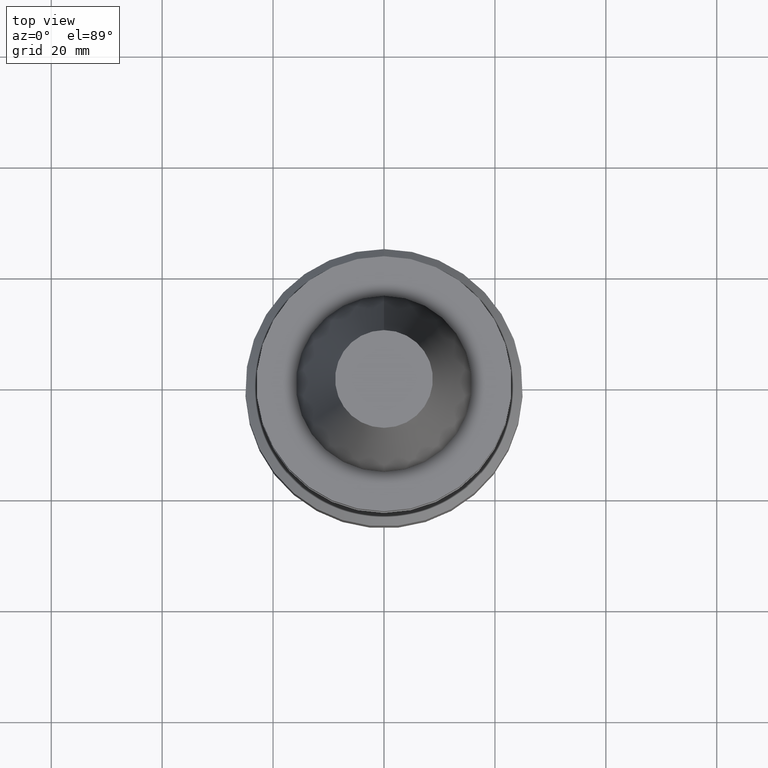
[diagram: clean part render]
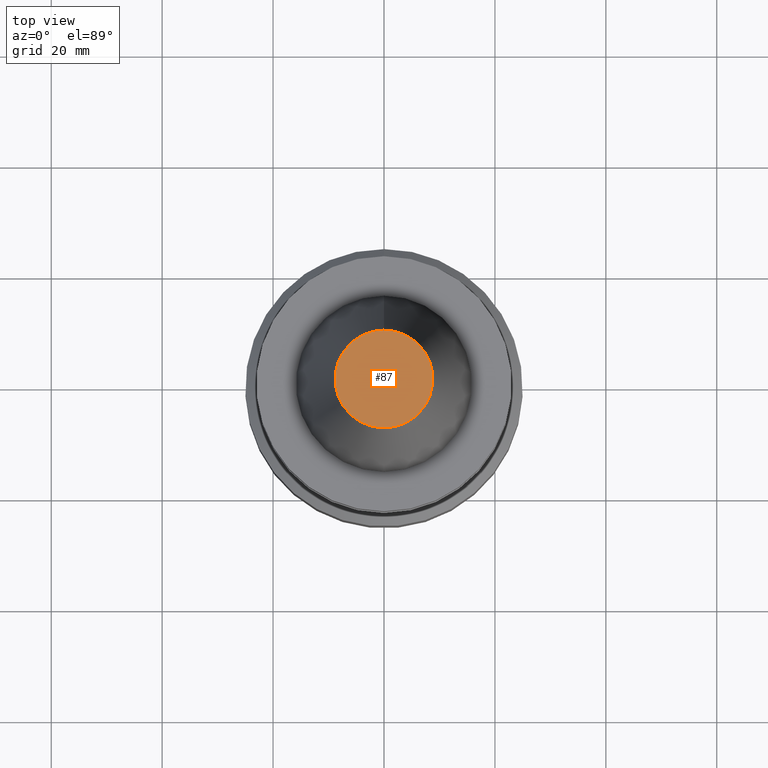
[diagram: same view with one face highlighted and labeled with its STEP entity id]
A machine part, top view. The second image highlights one B-rep face of the part: STEP entity #87.
In plain terms, the highlighted planar face has unit normal (-0, -0, 1).
Its self-contained STEP definition (entity closure, byte-faithful):
#87=ADVANCED_FACE('',(#125),#126,.T.);
#125=FACE_OUTER_BOUND('',#165,.T.);
#126=PLANE('',#166);
#165=EDGE_LOOP('',(#229));
#166=AXIS2_PLACEMENT_3D('',#230,#231,#232);
#229=ORIENTED_EDGE('',*,*,#250,.F.);
#230=CARTESIAN_POINT('',(-2.96364525393659E-015,4.40825,48.4));
#231=DIRECTION('',(-6.12323399573677E-017,-1.22464679914735E-016,1.0));
#232=DIRECTION('',(1.23259516440783E-032,-1.0,-1.22464679914735E-016));
#250=EDGE_CURVE('',#275,#275,#276,.T.);
#275=VERTEX_POINT('',#301);
#276=CIRCLE('',#302,8.81650000000001);
#301=CARTESIAN_POINT('',(-2.96364525393659E-015,8.8165,48.4));
#302=AXIS2_PLACEMENT_3D('',#339,#340,#341);
#339=CARTESIAN_POINT('',(-2.96364525393659E-015,-5.92729050787319E-015,48.4));
#340=DIRECTION('',(6.12323399573677E-017,1.22464679914735E-016,-1.0));
#341=DIRECTION('',(-1.23259516440783E-032,1.0,1.22464679914735E-016));